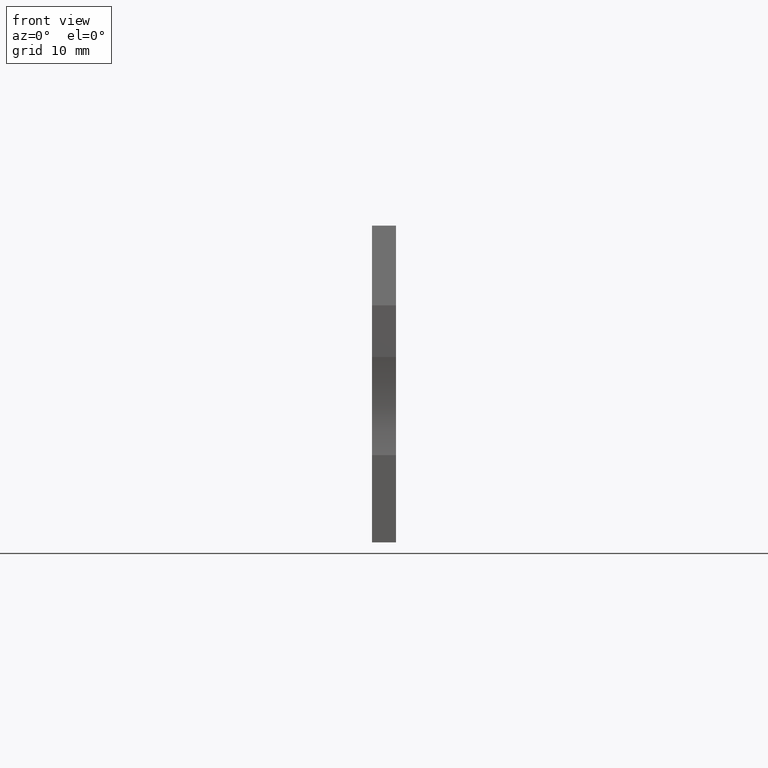
[diagram: clean part render]
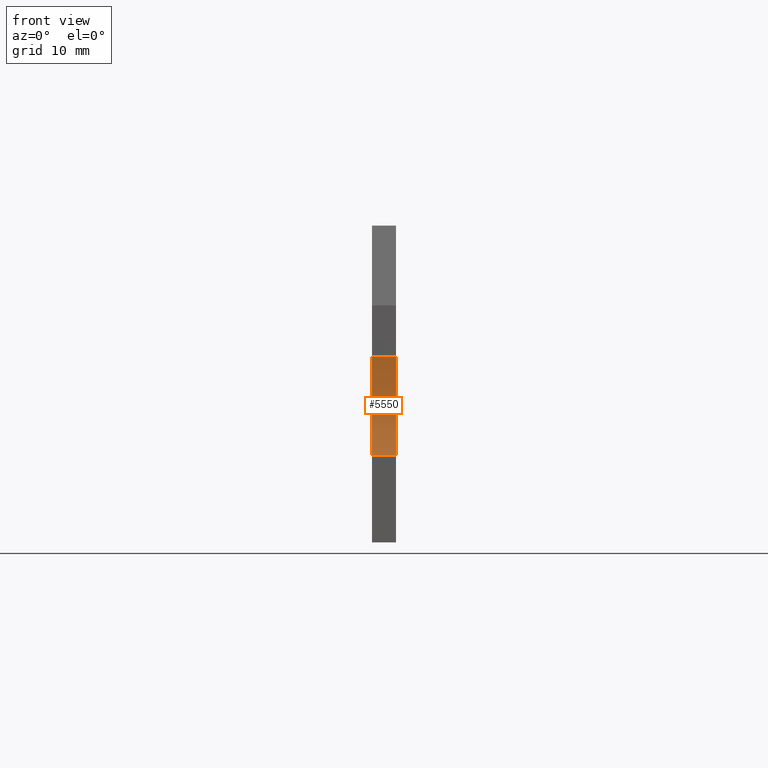
[diagram: same view with one face highlighted and labeled with its STEP entity id]
A machine part, front view. The second image highlights one B-rep face of the part: STEP entity #5550.
In plain terms, the highlighted cylindrical surface (partial cylindrical patch) has radius 15 mm, axis along (1, 0, 0).
Its self-contained STEP definition (entity closure, byte-faithful):
#200=CARTESIAN_POINT('',(-22.367832778321,-21.2000000000008,53.17));
#210=VERTEX_POINT('',#200);
#240=CARTESIAN_POINT('',(-36.6769207995752,-25.7000000000007,53.17));
#250=DIRECTION('',(0.,0.,1.));
#260=DIRECTION('',(1.,0.,0.));
#270=AXIS2_PLACEMENT_3D('',#240,#250,#260);
#280=CIRCLE('',#270,15.);
#290=CARTESIAN_POINT('',(-22.367832778321,-30.2000000000007,53.17));
#300=VERTEX_POINT('',#290);
#310=EDGE_CURVE('',#300,#210,#280,.T.);
#2580=CARTESIAN_POINT('',(-22.367832778321,-30.2000000000007,55.37));
#2590=VERTEX_POINT('',#2580);
#2620=CARTESIAN_POINT('',(-36.6769207995752,-25.7000000000007,55.37));
#2630=DIRECTION('',(0.,0.,1.));
#2640=DIRECTION('',(1.,0.,0.));
#2650=AXIS2_PLACEMENT_3D('',#2620,#2630,#2640);
#2660=CIRCLE('',#2650,15.);
#2670=CARTESIAN_POINT('',(-22.367832778321,-21.2000000000008,55.37));
#2680=VERTEX_POINT('',#2670);
#2690=EDGE_CURVE('',#2590,#2680,#2660,.T.);
#4960=CARTESIAN_POINT('',(-22.367832778321,-21.2000000000008,55.37));
#4970=DIRECTION('',(0.,0.,1.));
#4980=VECTOR('',#4970,1.);
#4990=LINE('',#4960,#4980);
#5000=EDGE_CURVE('',#210,#2680,#4990,.T.);
#5390=CARTESIAN_POINT('',(-36.6769207995752,-25.7000000000007,55.37));
#5400=DIRECTION('',(0.,0.,1.));
#5410=DIRECTION('',(1.,0.,0.));
#5420=AXIS2_PLACEMENT_3D('',#5390,#5400,#5410);
#5430=CYLINDRICAL_SURFACE('',#5420,15.);
#5440=CARTESIAN_POINT('',(-22.367832778321,-30.2000000000007,55.37));
#5450=DIRECTION('',(0.,0.,1.));
#5460=VECTOR('',#5450,1.);
#5470=LINE('',#5440,#5460);
#5480=EDGE_CURVE('',#300,#2590,#5470,.T.);
#5490=ORIENTED_EDGE('',*,*,#5480,.T.);
#5500=ORIENTED_EDGE('',*,*,#310,.F.);
#5510=ORIENTED_EDGE('',*,*,#5000,.F.);
#5520=ORIENTED_EDGE('',*,*,#2690,.T.);
#5530=EDGE_LOOP('',(#5520,#5510,#5500,#5490));
#5540=FACE_OUTER_BOUND('',#5530,.T.);
#5550=ADVANCED_FACE('',(#5540),#5430,.F.);